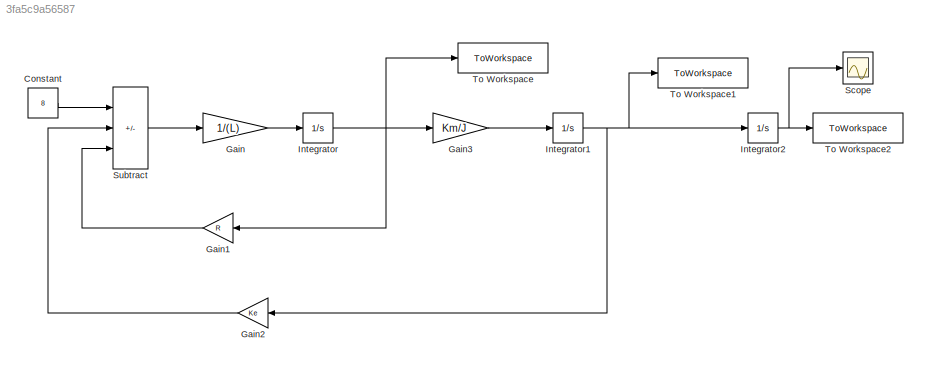
MODEL slx_3fa5c9a56587
KIND model
CONFIG AbsTol = auto
CONFIG EnableMultiTasking = off
CONFIG FixedStep = auto
CONFIG MaxStep = auto
CONFIG MinStep = auto
CONFIG RelTol = 1e-3
CONFIG SampleTimeConstraint = Unconstrained
CONFIG SolverName = VariableStepAuto
CONFIG StartTime = 0.0
CONFIG StopTime = 1
BLOCK [Constant] Constant
  Value = 8
BLOCK [Gain] Gain
  Gain = 1/(L)
BLOCK [Gain] Gain1
  Gain = R
  NameLocation = top
BLOCK [Gain] Gain2
  Gain = Ke
  NameLocation = top
BLOCK [Gain] Gain3
  Gain = Km/J
BLOCK [Integrator] Integrator
  Ports = [1, 1]
BLOCK [Integrator] Integrator1
  Ports = [1, 1]
BLOCK [Integrator] Integrator2
  Ports = [1, 1]
BLOCK [Scope] Scope
  Floating = off
  NumInputPorts = 1
  Ports = [1]
  ScopeSpecificationString = Simulink.scopes.TimeScopeBlockCfg('CurrentConfiguration', extmgr.ConfigurationSet(extmgr.Configuration('Core','General UI',true),extmgr.Configuration('Core','Source UI',true),extmgr.Configuration('Sources','WiredSimulink',true),extmgr.Configuration('Visuals','Time Domain',true,'SerializedDisplays',{struct('MinYLimReal','-1.86713','MaxYLimReal','16.80419','YLabelReal','','MinYLimMag','0.00000','Max...<+1364ch>
BLOCK [Sum] Subtract
  IconShape = rectangular
  Inputs = +--
  Ports = [3, 1]
BLOCK [ToWorkspace] To Workspace
  FixptAsFi = on
  MaxDataPoints = inf
  Ports = [1]
  SampleTime = -1
  SaveFormat = Timeseries
  VariableName = I
BLOCK [ToWorkspace] To Workspace1
  FixptAsFi = on
  MaxDataPoints = inf
  Ports = [1]
  SampleTime = -1
  SaveFormat = Timeseries
  VariableName = W
BLOCK [ToWorkspace] To Workspace2
  FixptAsFi = on
  MaxDataPoints = inf
  Ports = [1]
  SampleTime = -1
  SaveFormat = Timeseries
  VariableName = Cr
LINE Constant:1 -> Subtract:1
LINE Gain1:1 -> Subtract:3
LINE Gain2:1 -> Subtract:2
LINE Gain3:1 -> Integrator1:1
LINE Gain:1 -> Integrator:1
NET Integrator1:1 -> Gain2:1, Integrator2:1, To Workspace1:1
NET Integrator2:1 -> Scope:1, To Workspace2:1
NET Integrator:1 -> Gain1:1, Gain3:1, To Workspace:1
LINE Subtract:1 -> Gain:1
note: NET lines group one-source signal fan-out (src -> all destinations, sorted); 1:1 wires keep LINE
